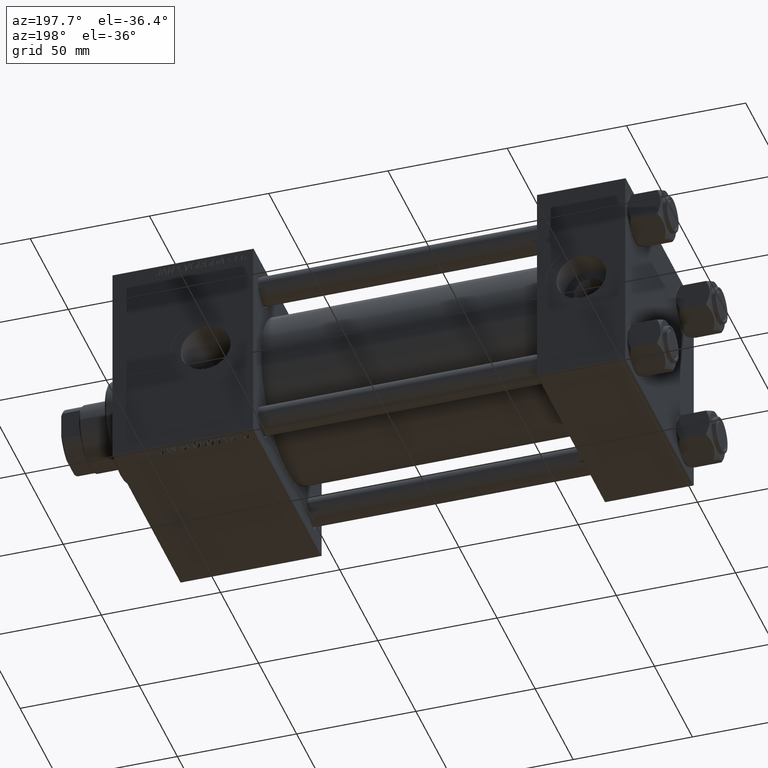
[diagram: clean part render]
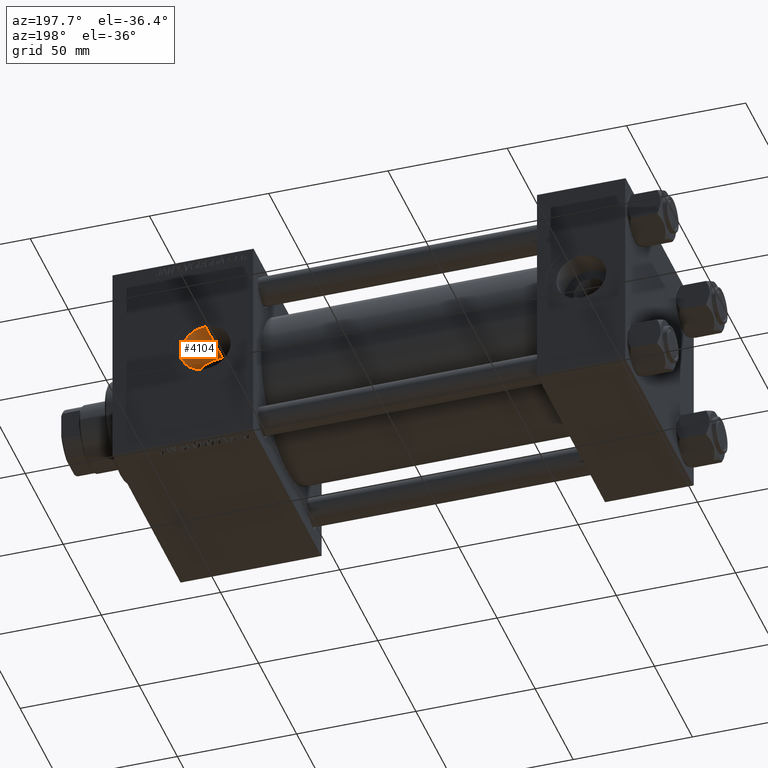
[diagram: same view with one face highlighted and labeled with its STEP entity id]
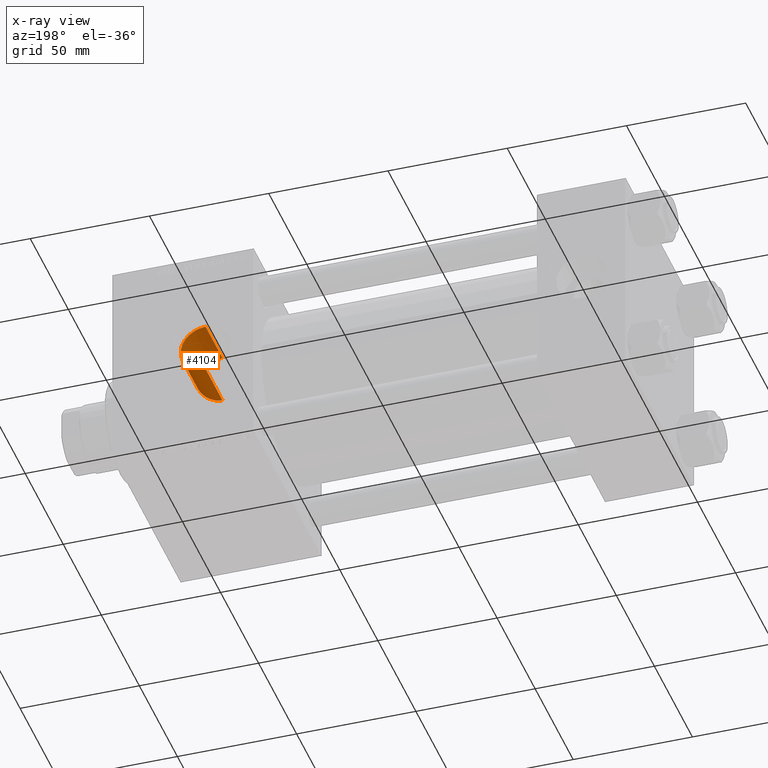
[diagram: x-ray of the same camera — body ghosted, the highlighted face saturated]
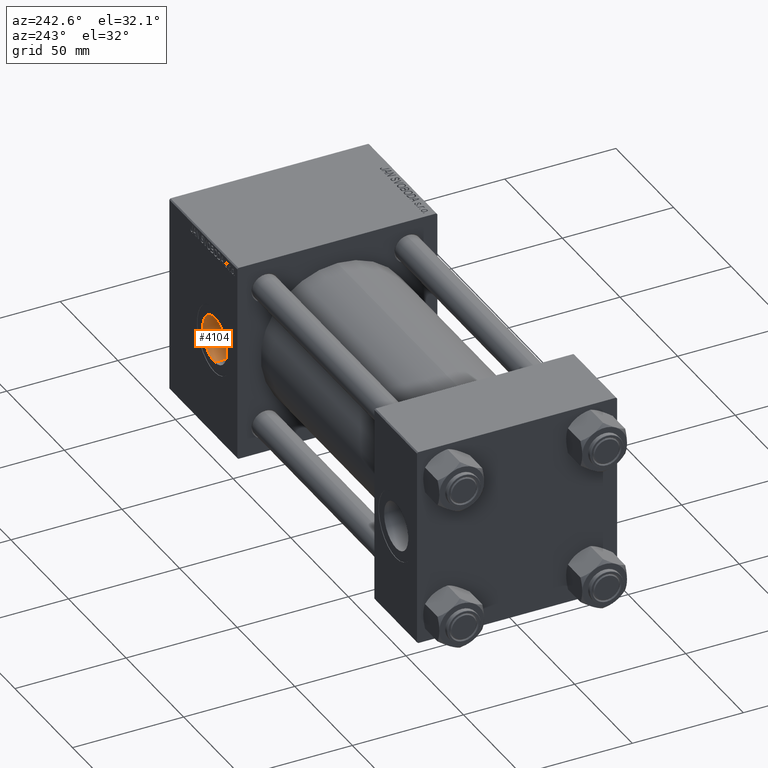
[diagram: same view with one face highlighted and labeled with its STEP entity id]
A machine part, auxiliary view. The second image highlights one B-rep face of the part: STEP entity #4104.
The next image is the same camera in x-ray: the body ghosted, the highlighted face saturated — about 0% of this face is hidden behind the body in this view.
A second angle (auxiliary view) of the same face is appended — the face is thin or edge-on in the first view.
In plain terms, the highlighted cylindrical surface (edge-blend (fillet) strip) has radius 10.48 mm, axis along (0, 1, 0).
Its self-contained STEP definition (entity closure, byte-faithful):
#698 = EDGE_CURVE ( 'NONE', #35063, #44887, #38593, .T. ) ;
#2041 = AXIS2_PLACEMENT_3D ( 'NONE', #5655, #33420, #45397 ) ;
#2367 = CARTESIAN_POINT ( 'NONE',  ( 176.0000000000000000, 22.69734786269092908, 10.47999999999998622 ) ) ;
#2573 = DIRECTION ( 'NONE',  ( -0.000000000000000000, 1.000000000000000000, -0.000000000000000000 ) ) ;
#2616 = CARTESIAN_POINT ( 'NONE',  ( 177.2322774918956725, 22.72288875680884601, 10.42516416521381828 ) ) ;
#2682 = CARTESIAN_POINT ( 'NONE',  ( 186.2999999999999829, -29.64191626734002938, -1.934011375354246276 ) ) ;
#2792 = B_SPLINE_CURVE_WITH_KNOTS ( 'NONE', 3,
 ( #2367, #38198, #2616, #33786, #45502, #14056, #37697, #9910, #6281, #49419, #41338, #25738, #46268, #18457, #6023, #17437, #17957, #22349, #34037, #10167 ),
 .UNSPECIFIED., .F., .F.,
 ( 4, 2, 2, 2, 2, 2, 2, 2, 2, 4 ),
 ( 0.04777555843500057298, 0.04960278494382210079, 0.05143001145264363555, 0.05234362470705439946, 0.05325723796146516337, 0.05508446447028669118, 0.05691169097910821206, 0.05873891748792973294, 0.06056614399675125382, 0.06239337050557278164 ),
 .UNSPECIFIED. ) ;
#2932 = DIRECTION ( 'NONE',  ( -0.000000000000000000, 1.000000000000000000, -0.000000000000000000 ) ) ;
#4104 = ADVANCED_FACE ( 'NONE', ( #45719 ), #38151, .F. ) ;
#4571 = CARTESIAN_POINT ( 'NONE',  ( 186.4210485436893521, 29.97924172559975275, -1.289340916902831147 ) ) ;
#4802 = ORIENTED_EDGE ( 'NONE', *, *, #698, .F. ) ;
#5655 = CARTESIAN_POINT ( 'NONE',  ( 176.0000000000000000, 44.80000000000000426, 0.000000000000000000 ) ) ;
#5976 = VERTEX_POINT ( 'NONE', #28065 ) ;
#6023 = CARTESIAN_POINT ( 'NONE',  ( 184.7194189641794821, 24.31287004917998829, 5.845627410065716845 ) ) ;
#6281 = CARTESIAN_POINT ( 'NONE',  ( 180.9753809948898038, 23.23488527341190490, 9.228541309191445663 ) ) ;
#6299 = CARTESIAN_POINT ( 'NONE',  ( 185.1791453405797370, 24.48276497113434402, -5.066132143998562931 ) ) ;
#6404 = VECTOR ( 'NONE', #2932, 1000.000000000000000 ) ;
#6796 = CARTESIAN_POINT ( 'NONE',  ( 177.5323102098026880, 22.74705995731305563, -10.37182038327442157 ) ) ;
#7092 = CARTESIAN_POINT ( 'NONE',  ( 176.0000000000000000, -29.64191626734002938, -10.47999999999998622 ) ) ;
#8464 = CARTESIAN_POINT ( 'NONE',  ( 186.2999999999999829, 29.93759509379469819, -1.934011375354246276 ) ) ;
#9272 = EDGE_CURVE ( 'NONE', #5976, #14337, #2792, .T. ) ;
#9910 = CARTESIAN_POINT ( 'NONE',  ( 180.7083723491581964, 23.17899486745391613, 9.367678011353742562 ) ) ;
#9930 = CARTESIAN_POINT ( 'NONE',  ( 179.8722702370924651, 23.02355914754544131, -9.743129116453783212 ) ) ;
#10123 = DIRECTION ( 'NONE',  ( 0.000000000000000000, 0.000000000000000000, 1.000000000000000000 ) ) ;
#10167 = CARTESIAN_POINT ( 'NONE',  ( 186.2999999999999829, 24.92507973909011554, 1.934011375354246276 ) ) ;
#10185 = CARTESIAN_POINT ( 'NONE',  ( 180.9708057090665818, 23.23390972285158540, -9.230989781872747102 ) ) ;
#10685 = CARTESIAN_POINT ( 'NONE',  ( 184.7165790327874504, 24.31185381307016513, -5.849757798485076599 ) ) ;
#10771 = CARTESIAN_POINT ( 'NONE',  ( 176.0000000000000000, -29.64191626734002938, 10.47999999999998622 ) ) ;
#11735 = LINE ( 'NONE', #7092, #6404 ) ;
#11755 = ORIENTED_EDGE ( 'NONE', *, *, #32103, .T. ) ;
#11901 = EDGE_CURVE ( 'NONE', #18793, #44887, #19022, .T. ) ;
#12317 = CARTESIAN_POINT ( 'NONE',  ( 186.2999999999999829, 29.93759509379469819, -1.934011375354246276 ) ) ;
#13268 = ORIENTED_EDGE ( 'NONE', *, *, #50067, .F. ) ;
#13959 = ORIENTED_EDGE ( 'NONE', *, *, #27414, .F. ) ;
#14056 = CARTESIAN_POINT ( 'NONE',  ( 179.8763894940812236, 23.02425611976456921, 9.741482359767376309 ) ) ;
#14078 = CARTESIAN_POINT ( 'NONE',  ( 183.5841984343152831, 23.93007535684160914, -7.238810305119396382 ) ) ;
#14226 = VERTEX_POINT ( 'NONE', #28037 ) ;
#14337 = VERTEX_POINT ( 'NONE', #29342 ) ;
#14521 = CARTESIAN_POINT ( 'NONE',  ( 176.0000000000000000, -29.64191626734002938, 0.000000000000000000 ) ) ;
#14583 = CARTESIAN_POINT ( 'NONE',  ( 185.5834545747851223, 24.63732295853901277, -4.251964245000960929 ) ) ;
#14783 = VECTOR ( 'NONE', #15431, 1000.000000000000000 ) ;
#14830 = CARTESIAN_POINT ( 'NONE',  ( 181.7493281379709060, 23.40872872428954210, -8.782616521472784044 ) ) ;
#14968 = CARTESIAN_POINT ( 'NONE',  ( 186.2999999999999829, -29.64191626734002938, 1.934011375354246276 ) ) ;
#15089 = CARTESIAN_POINT ( 'NONE',  ( 185.3223998280051319, 24.53695619936534911, -4.797360000515543454 ) ) ;
#15431 = DIRECTION ( 'NONE',  ( -0.000000000000000000, 1.000000000000000000, -0.000000000000000000 ) ) ;
#17437 = CARTESIAN_POINT ( 'NONE',  ( 185.3365885758777551, 24.54097123568320882, 4.798722814978416906 ) ) ;
#17957 = CARTESIAN_POINT ( 'NONE',  ( 185.5967018876780230, 24.64200291405538579, 4.254096972755011308 ) ) ;
#18457 = CARTESIAN_POINT ( 'NONE',  ( 184.3712186421444414, 24.18913309560350555, 6.333144320437556374 ) ) ;
#18793 = VERTEX_POINT ( 'NONE', #31048 ) ;
#19022 = LINE ( 'NONE', #2682, #21744 ) ;
#21744 = VECTOR ( 'NONE', #22919, 1000.000000000000000 ) ;
#22349 = CARTESIAN_POINT ( 'NONE',  ( 186.0213090755694054, 24.81044651116622290, 3.125282801040263347 ) ) ;
#22619 = CARTESIAN_POINT ( 'NONE',  ( 183.7875165981256487, 23.99545103971815152, -7.019557294124505908 ) ) ;
#22919 = DIRECTION ( 'NONE',  ( -0.000000000000000000, 1.000000000000000000, -0.000000000000000000 ) ) ;
#22959 = LINE ( 'NONE', #10771, #14783 ) ;
#25738 = CARTESIAN_POINT ( 'NONE',  ( 183.1732750394716618, 23.79974685375126953, 7.664106030242019862 ) ) ;
#25759 = CARTESIAN_POINT ( 'NONE',  ( 177.2299806015979584, 22.72859684883633591, -10.41209742797557780 ) ) ;
#26511 = CARTESIAN_POINT ( 'NONE',  ( 180.1555850499988480, 23.07305854210198603, -9.625647614747023795 ) ) ;
#26833 = CARTESIAN_POINT ( 'NONE',  ( 176.0000000000000000, 44.80000000000000426, 10.47999999999998622 ) ) ;
#26977 = CARTESIAN_POINT ( 'NONE',  ( 186.2999999999999829, 29.93759509379469819, 1.934011375354246276 ) ) ;
#27414 = EDGE_CURVE ( 'NONE', #14226, #34496, #11735, .T. ) ;
#28037 = CARTESIAN_POINT ( 'NONE',  ( 175.9999999999999432, 22.69734786269093618, -10.48000000000000043 ) ) ;
#28065 = CARTESIAN_POINT ( 'NONE',  ( 176.0000000000000000, 22.69734786269092908, 10.47999999999998622 ) ) ;
#29012 = VERTEX_POINT ( 'NONE', #26833 ) ;
#29342 = CARTESIAN_POINT ( 'NONE',  ( 186.2999999999999829, 24.92507973909011554, 1.934011375354246276 ) ) ;
#29906 = CARTESIAN_POINT ( 'NONE',  ( 183.1575839128000496, 23.79830767432467908, -7.660902887767199410 ) ) ;
#30793 = DIRECTION ( 'NONE',  ( 0.000000000000000000, -1.000000000000000000, 0.000000000000000000 ) ) ;
#30916 = CARTESIAN_POINT ( 'NONE',  ( 178.4293865525148703, 22.81920611046002634, -10.21261041782896584 ) ) ;
#31048 = CARTESIAN_POINT ( 'NONE',  ( 186.2999999999999829, 24.92507973909011554, -1.934011375354246276 ) ) ;
#31119 = CARTESIAN_POINT ( 'NONE',  ( 186.4210485436892384, 29.97924172559974565, 1.289340916902830925 ) ) ;
#31217 = ORIENTED_EDGE ( 'NONE', *, *, #11901, .T. ) ;
#31269 = EDGE_CURVE ( 'NONE', #5976, #29012, #22959, .T. ) ;
#32103 = EDGE_CURVE ( 'NONE', #35063, #14337, #50835, .T. ) ;
#33420 = DIRECTION ( 'NONE',  ( 0.000000000000000000, 1.000000000000000000, 0.000000000000000000 ) ) ;
#33786 = CARTESIAN_POINT ( 'NONE',  ( 178.4335631959205557, 22.81958359536423586, 10.21177388410807652 ) ) ;
#33937 = ORIENTED_EDGE ( 'NONE', *, *, #9272, .F. ) ;
#33984 = ORIENTED_EDGE ( 'NONE', *, *, #49221, .T. ) ;
#34037 = CARTESIAN_POINT ( 'NONE',  ( 186.1860905014695504, 24.87800796049819851, 2.540661289525187883 ) ) ;
#34060 = CARTESIAN_POINT ( 'NONE',  ( 182.9332077102124572, 23.73162063118219578, -7.864568902139596140 ) ) ;
#34311 = CARTESIAN_POINT ( 'NONE',  ( 186.1860373835924349, 24.87798601015178690, -2.540944180381793149 ) ) ;
#34496 = VERTEX_POINT ( 'NONE', #48625 ) ;
#34567 = CARTESIAN_POINT ( 'NONE',  ( 184.3682082231355537, 24.18807830728738040, -6.337214579021512861 ) ) ;
#34685 = B_SPLINE_CURVE_WITH_KNOTS ( 'NONE', 3,
 ( #34818, #34311, #50194, #50702, #14583, #15089, #6299, #10685, #34567, #22619, #14078, #29906, #34060, #50444, #14830, #10185, #46286, #26511, #9930, #37965, #30916, #6796, #25759, #49940, #42378, #38481 ),
 .UNSPECIFIED., .F., .F.,
 ( 4, 2, 2, 2, 2, 2, 2, 2, 2, 2, 2, 2, 4 ),
 ( 0.000000000000000000, 0.001829777386401824479, 0.002744666079602720455, 0.003659554772803617299, 0.005489332159205407950, 0.006404220852406304794, 0.007319109545607201638, 0.009148886932009053438, 0.01006377562520994681, 0.01097866431841083845, 0.01280844170481269806, 0.01372333039801362960, 0.01463821909121455940 ),
 .UNSPECIFIED. ) ;
#34818 = CARTESIAN_POINT ( 'NONE',  ( 186.2999999999999829, 24.92507973909011554, -1.934011375354246276 ) ) ;
#35063 = VERTEX_POINT ( 'NONE', #49580 ) ;
#35273 = CARTESIAN_POINT ( 'NONE',  ( 186.5389514563106275, 30.02075827440025080, -2.168404344971008868E-16 ) ) ;
#36837 = CIRCLE ( 'NONE', #2041, 10.47999999999998622 ) ;
#37697 = CARTESIAN_POINT ( 'NONE',  ( 180.1594229704399766, 23.07374768723454395, 9.623999275545168430 ) ) ;
#37965 = CARTESIAN_POINT ( 'NONE',  ( 179.0142847940009858, 22.88965506391802762, -10.05559815508268073 ) ) ;
#38059 = AXIS2_PLACEMENT_3D ( 'NONE', #14521, #2573, #10123 ) ;
#38151 = CYLINDRICAL_SURFACE ( 'NONE', #38059, 10.47999999999998622 ) ;
#38198 = CARTESIAN_POINT ( 'NONE',  ( 176.6110601447643376, 22.69734786269092552, 10.47999999999998622 ) ) ;
#38411 = ORIENTED_EDGE ( 'NONE', *, *, #31269, .T. ) ;
#38481 = CARTESIAN_POINT ( 'NONE',  ( 175.9999999999999432, 22.69734786269093618, -10.48000000000000043 ) ) ;
#38593 = B_SPLINE_CURVE_WITH_KNOTS ( 'NONE', 3,
 ( #26977, #31119, #35273, #4571, #8464 ),
 .UNSPECIFIED., .F., .F.,
 ( 4, 1, 4 ),
 ( 0.000000000000000000, 0.001934011375354246186, 0.003868022750708492372 ),
 .UNSPECIFIED. ) ;
#41338 = CARTESIAN_POINT ( 'NONE',  ( 182.2463736098319487, 23.53697641551143604, 8.436658862434475381 ) ) ;
#41348 = VECTOR ( 'NONE', #30793, 1000.000000000000000 ) ;
#42378 = CARTESIAN_POINT ( 'NONE',  ( 176.3076896963080173, 22.69734786269092197, -10.47999999999998799 ) ) ;
#44887 = VERTEX_POINT ( 'NONE', #12317 ) ;
#45397 = DIRECTION ( 'NONE',  ( 0.000000000000000000, 0.000000000000000000, 1.000000000000000000 ) ) ;
#45502 = CARTESIAN_POINT ( 'NONE',  ( 179.0193213176865754, 22.89033417524106184, 10.05405366419393509 ) ) ;
#45719 = FACE_OUTER_BOUND ( 'NONE', #47676, .T. ) ;
#46268 = CARTESIAN_POINT ( 'NONE',  ( 183.5987668480131276, 23.93278328930207977, 7.241875511745201166 ) ) ;
#46286 = CARTESIAN_POINT ( 'NONE',  ( 180.7040979107195540, 23.17812935793411455, -9.369815470830934245 ) ) ;
#47676 = EDGE_LOOP ( 'NONE', ( #13959, #13268, #31217, #4802, #11755, #33937, #38411, #33984 ) ) ;
#48625 = CARTESIAN_POINT ( 'NONE',  ( 176.0000000000000000, 44.80000000000000426, -10.47999999999998622 ) ) ;
#49221 = EDGE_CURVE ( 'NONE', #29012, #34496, #36837, .T. ) ;
#49419 = CARTESIAN_POINT ( 'NONE',  ( 181.7549989371403854, 23.41010728859863477, 8.778972046462296674 ) ) ;
#49580 = CARTESIAN_POINT ( 'NONE',  ( 186.2999999999999829, 29.93759509379469819, 1.934011375354246276 ) ) ;
#49940 = CARTESIAN_POINT ( 'NONE',  ( 176.6184503203334373, 22.70371650711279443, -10.46623830854439419 ) ) ;
#50067 = EDGE_CURVE ( 'NONE', #18793, #14226, #34685, .T. ) ;
#50194 = CARTESIAN_POINT ( 'NONE',  ( 186.0210743422584869, 24.81034816119847619, -3.126242148223932205 ) ) ;
#50444 = CARTESIAN_POINT ( 'NONE',  ( 182.2397153213853471, 23.53522980150269106, -8.441445692881799800 ) ) ;
#50702 = CARTESIAN_POINT ( 'NONE',  ( 185.7018873513318056, 24.68373309296299212, -3.974293906804984733 ) ) ;
#50835 = LINE ( 'NONE', #14968, #41348 ) ;